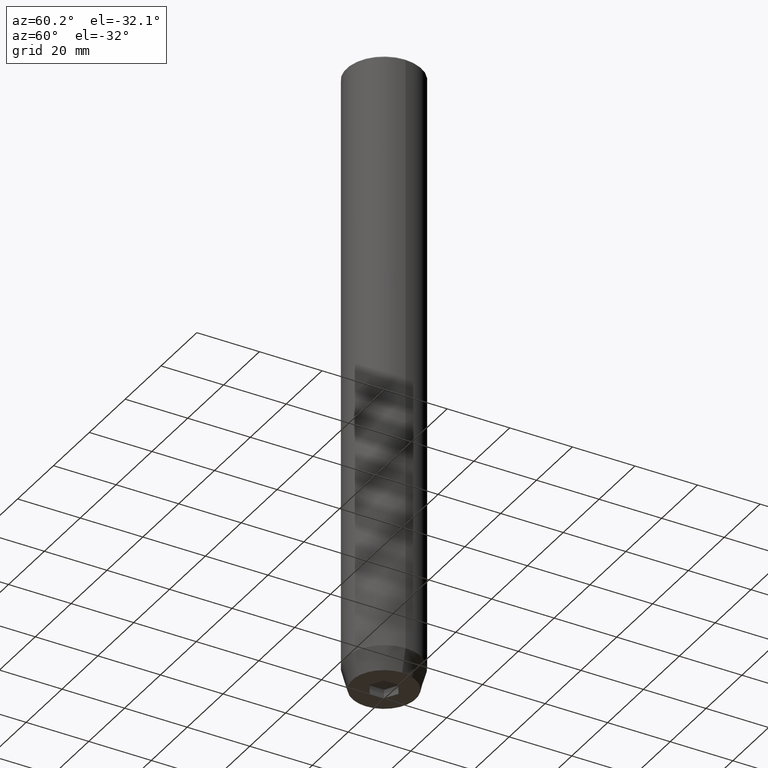
[diagram: clean part render]
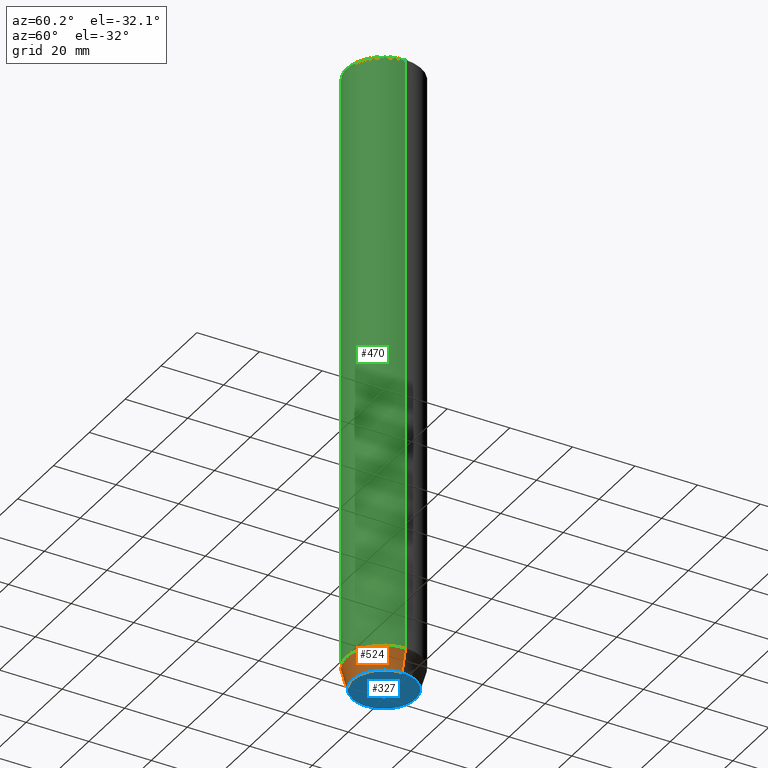
[diagram: same view with three faces highlighted in distinct colors, each labeled with its STEP entity id]
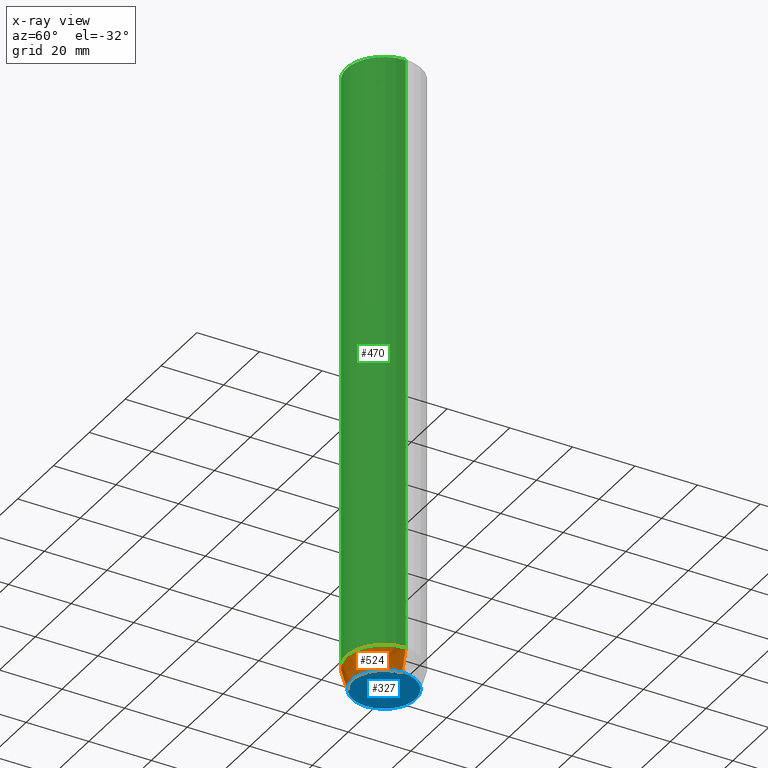
[diagram: x-ray of the same camera — body ghosted, the three highlighted faces saturated]
A machine part, auxiliary view with three faces highlighted in distinct colors.
The next image is the same camera in x-ray (body ghosted, the three faces saturated) — at least one of them is partly hidden behind the body in this view.
Their STEP definitions:

[orange] entity #524 — the highlighted conical surface has half-angle 15 deg.
#4 = VECTOR ( 'NONE', #447, 1000.000000000000000 ) ;
#39 = ORIENTED_EDGE ( 'NONE', *, *, #291, .F. ) ;
#47 = DIRECTION ( 'NONE',  ( 1.000000000000000000, 0.000000000000000000, 0.000000000000000000 ) ) ;
#52 = VERTEX_POINT ( 'NONE', #127 ) ;
#59 = AXIS2_PLACEMENT_3D ( 'NONE', #567, #383, #164 ) ;
#94 = AXIS2_PLACEMENT_3D ( 'NONE', #301, #420, #329 ) ;
#99 = ORIENTED_EDGE ( 'NONE', *, *, #334, .T. ) ;
#108 = FACE_OUTER_BOUND ( 'NONE', #264, .T. ) ;
#127 = CARTESIAN_POINT ( 'NONE',  ( 12.00000000000000000, 0.000000000000000000, -193.0000000000000000 ) ) ;
#135 = EDGE_CURVE ( 'NONE', #156, #416, #141, .T. ) ;
#139 = DIRECTION ( 'NONE',  ( -0.000000000000000000, -0.000000000000000000, 1.000000000000000000 ) ) ;
#141 = CIRCLE ( 'NONE', #59, 10.12435565298213547 ) ;
#147 = LINE ( 'NONE', #317, #4 ) ;
#149 = VERTEX_POINT ( 'NONE', #425 ) ;
#156 = VERTEX_POINT ( 'NONE', #265 ) ;
#164 = DIRECTION ( 'NONE',  ( 1.000000000000000000, 0.000000000000000000, 0.000000000000000000 ) ) ;
#172 = CONICAL_SURFACE ( 'NONE', #94, 12.00000000000000000, 0.2617993877991500740 ) ;
#179 = DIRECTION ( 'NONE',  ( 0.2588190451025213501, 0.000000000000000000, 0.9659258262890680902 ) ) ;
#204 = VECTOR ( 'NONE', #179, 1000.000000000000000 ) ;
#235 = CARTESIAN_POINT ( 'NONE',  ( 10.12435565298213547, 0.000000000000000000, -200.0000000000000000 ) ) ;
#236 = LINE ( 'NONE', #406, #204 ) ;
#264 = EDGE_LOOP ( 'NONE', ( #412, #349, #99, #39 ) ) ;
#265 = CARTESIAN_POINT ( 'NONE',  ( -10.12435565298213547, 1.354726066681111050E-15, -200.0000000000000000 ) ) ;
#291 = EDGE_CURVE ( 'NONE', #149, #52, #322, .T. ) ;
#301 = CARTESIAN_POINT ( 'NONE',  ( 0.000000000000000000, 0.000000000000000000, -193.0000000000000000 ) ) ;
#305 = AXIS2_PLACEMENT_3D ( 'NONE', #404, #139, #47 ) ;
#317 = CARTESIAN_POINT ( 'NONE',  ( -12.00000000000000000, 1.469576158976823947E-15, -193.0000000000000000 ) ) ;
#322 = CIRCLE ( 'NONE', #305, 12.00000000000000000 ) ;
#329 = DIRECTION ( 'NONE',  ( 1.000000000000000000, 0.000000000000000000, 0.000000000000000000 ) ) ;
#334 = EDGE_CURVE ( 'NONE', #416, #52, #236, .T. ) ;
#349 = ORIENTED_EDGE ( 'NONE', *, *, #135, .T. ) ;
#383 = DIRECTION ( 'NONE',  ( -0.000000000000000000, -0.000000000000000000, 1.000000000000000000 ) ) ;
#404 = CARTESIAN_POINT ( 'NONE',  ( 0.000000000000000000, 0.000000000000000000, -193.0000000000000000 ) ) ;
#406 = CARTESIAN_POINT ( 'NONE',  ( 12.00000000000000000, 0.000000000000000000, -193.0000000000000000 ) ) ;
#412 = ORIENTED_EDGE ( 'NONE', *, *, #458, .F. ) ;
#416 = VERTEX_POINT ( 'NONE', #235 ) ;
#420 = DIRECTION ( 'NONE',  ( -0.000000000000000000, -0.000000000000000000, 1.000000000000000000 ) ) ;
#425 = CARTESIAN_POINT ( 'NONE',  ( -12.00000000000000000, 1.469576158976823947E-15, -193.0000000000000000 ) ) ;
#447 = DIRECTION ( 'NONE',  ( -0.2588190451025213501, 3.169619151431772337E-17, 0.9659258262890680902 ) ) ;
#458 = EDGE_CURVE ( 'NONE', #156, #149, #147, .T. ) ;
#524 = ADVANCED_FACE ( 'NONE', ( #108 ), #172, .T. ) ;
#567 = CARTESIAN_POINT ( 'NONE',  ( 0.000000000000000000, 0.000000000000000000, -200.0000000000000000 ) ) ;

[blue] entity #327 — the highlighted planar face has unit normal (0, 0, -1).
#3 = CARTESIAN_POINT ( 'NONE',  ( 2.000000000000000444, 3.464101615137754386, -200.0000000000000000 ) ) ;
#12 = CARTESIAN_POINT ( 'NONE',  ( 0.000000000000000000, 0.000000000000000000, -200.0000000000000000 ) ) ;
#28 = EDGE_LOOP ( 'NONE', ( #511, #121 ) ) ;
#42 = FACE_OUTER_BOUND ( 'NONE', #28, .T. ) ;
#43 = VECTOR ( 'NONE', #361, 1000.000000000000000 ) ;
#53 = AXIS2_PLACEMENT_3D ( 'NONE', #12, #62, #255 ) ;
#57 = VERTEX_POINT ( 'NONE', #442 ) ;
#59 = AXIS2_PLACEMENT_3D ( 'NONE', #567, #383, #164 ) ;
#62 = DIRECTION ( 'NONE',  ( -0.000000000000000000, -0.000000000000000000, 1.000000000000000000 ) ) ;
#88 = CARTESIAN_POINT ( 'NONE',  ( -4.000000000000000000, 0.000000000000000000, -200.0000000000000000 ) ) ;
#89 = CARTESIAN_POINT ( 'NONE',  ( -2.000000000000000888, -3.464101615137754386, -200.0000000000000000 ) ) ;
#93 = CARTESIAN_POINT ( 'NONE',  ( 0.000000000000000000, 10.12435565298213547, -200.0000000000000000 ) ) ;
#101 = DIRECTION ( 'NONE',  ( 0.000000000000000000, -1.000000000000000000, 0.000000000000000000 ) ) ;
#121 = ORIENTED_EDGE ( 'NONE', *, *, #135, .F. ) ;
#135 = EDGE_CURVE ( 'NONE', #156, #416, #141, .T. ) ;
#138 = CARTESIAN_POINT ( 'NONE',  ( 4.336808689942017736E-16, -4.618802153517006737, -200.0000000000000000 ) ) ;
#140 = DIRECTION ( 'NONE',  ( -0.8660254037844384856, -0.5000000000000002220, 0.000000000000000000 ) ) ;
#141 = CIRCLE ( 'NONE', #59, 10.12435565298213547 ) ;
#144 = VERTEX_POINT ( 'NONE', #304 ) ;
#148 = FACE_BOUND ( 'NONE', #267, .T. ) ;
#156 = VERTEX_POINT ( 'NONE', #265 ) ;
#164 = DIRECTION ( 'NONE',  ( 1.000000000000000000, 0.000000000000000000, 0.000000000000000000 ) ) ;
#170 = VECTOR ( 'NONE', #551, 999.9999999999998863 ) ;
#178 = LINE ( 'NONE', #413, #170 ) ;
#180 = ORIENTED_EDGE ( 'NONE', *, *, #550, .F. ) ;
#195 = CARTESIAN_POINT ( 'NONE',  ( 4.000000000000000000, -2.309401076758502480, -200.0000000000000000 ) ) ;
#198 = VERTEX_POINT ( 'NONE', #435 ) ;
#233 = LINE ( 'NONE', #88, #483 ) ;
#234 = DIRECTION ( 'NONE',  ( 0.000000000000000000, 0.000000000000000000, -1.000000000000000000 ) ) ;
#235 = CARTESIAN_POINT ( 'NONE',  ( 10.12435565298213547, 0.000000000000000000, -200.0000000000000000 ) ) ;
#243 = CIRCLE ( 'NONE', #53, 10.12435565298213547 ) ;
#255 = DIRECTION ( 'NONE',  ( 1.000000000000000000, 0.000000000000000000, 0.000000000000000000 ) ) ;
#256 = EDGE_CURVE ( 'NONE', #490, #198, #324, .T. ) ;
#265 = CARTESIAN_POINT ( 'NONE',  ( -10.12435565298213547, 1.354726066681111050E-15, -200.0000000000000000 ) ) ;
#267 = EDGE_LOOP ( 'NONE', ( #434, #276, #387, #527, #180, #368 ) ) ;
#276 = ORIENTED_EDGE ( 'NONE', *, *, #488, .F. ) ;
#283 = DIRECTION ( 'NONE',  ( -1.000000000000000000, 0.000000000000000000, -0.000000000000000000 ) ) ;
#304 = CARTESIAN_POINT ( 'NONE',  ( 0.000000000000000000, 4.618802153517006737, -200.0000000000000000 ) ) ;
#324 = LINE ( 'NONE', #89, #548 ) ;
#326 = CARTESIAN_POINT ( 'NONE',  ( 4.000000000000000000, 0.000000000000000000, -200.0000000000000000 ) ) ;
#327 = ADVANCED_FACE ( 'NONE', ( #148, #42 ), #355, .T. ) ;
#332 = EDGE_CURVE ( 'NONE', #144, #386, #452, .T. ) ;
#352 = AXIS2_PLACEMENT_3D ( 'NONE', #93, #234, #283 ) ;
#355 = PLANE ( 'NONE',  #352 ) ;
#361 = DIRECTION ( 'NONE',  ( 0.8660254037844385966, -0.5000000000000001110, 0.000000000000000000 ) ) ;
#368 = ORIENTED_EDGE ( 'NONE', *, *, #332, .F. ) ;
#372 = EDGE_CURVE ( 'NONE', #500, #490, #498, .T. ) ;
#383 = DIRECTION ( 'NONE',  ( -0.000000000000000000, -0.000000000000000000, 1.000000000000000000 ) ) ;
#386 = VERTEX_POINT ( 'NONE', #494 ) ;
#387 = ORIENTED_EDGE ( 'NONE', *, *, #256, .F. ) ;
#413 = CARTESIAN_POINT ( 'NONE',  ( -2.000000000000000000, 3.464101615137754830, -200.0000000000000000 ) ) ;
#416 = VERTEX_POINT ( 'NONE', #235 ) ;
#418 = EDGE_CURVE ( 'NONE', #57, #144, #178, .T. ) ;
#434 = ORIENTED_EDGE ( 'NONE', *, *, #418, .F. ) ;
#435 = CARTESIAN_POINT ( 'NONE',  ( -4.000000000000000000, -2.309401076758503368, -200.0000000000000000 ) ) ;
#442 = CARTESIAN_POINT ( 'NONE',  ( -4.000000000000000000, 2.309401076758503368, -200.0000000000000000 ) ) ;
#452 = LINE ( 'NONE', #3, #43 ) ;
#453 = CARTESIAN_POINT ( 'NONE',  ( 2.000000000000000888, -3.464101615137754386, -200.0000000000000000 ) ) ;
#483 = VECTOR ( 'NONE', #542, 1000.000000000000000 ) ;
#484 = VECTOR ( 'NONE', #101, 1000.000000000000000 ) ;
#488 = EDGE_CURVE ( 'NONE', #198, #57, #233, .T. ) ;
#490 = VERTEX_POINT ( 'NONE', #138 ) ;
#494 = CARTESIAN_POINT ( 'NONE',  ( 4.000000000000000000, 2.309401076758503368, -200.0000000000000000 ) ) ;
#495 = DIRECTION ( 'NONE',  ( -0.8660254037844384856, 0.5000000000000002220, 0.000000000000000000 ) ) ;
#496 = VECTOR ( 'NONE', #140, 1000.000000000000114 ) ;
#498 = LINE ( 'NONE', #453, #496 ) ;
#500 = VERTEX_POINT ( 'NONE', #195 ) ;
#507 = EDGE_CURVE ( 'NONE', #416, #156, #243, .T. ) ;
#511 = ORIENTED_EDGE ( 'NONE', *, *, #507, .F. ) ;
#527 = ORIENTED_EDGE ( 'NONE', *, *, #372, .F. ) ;
#542 = DIRECTION ( 'NONE',  ( 0.000000000000000000, 1.000000000000000000, 0.000000000000000000 ) ) ;
#548 = VECTOR ( 'NONE', #495, 1000.000000000000114 ) ;
#550 = EDGE_CURVE ( 'NONE', #386, #500, #553, .T. ) ;
#551 = DIRECTION ( 'NONE',  ( 0.8660254037844387076, 0.5000000000000001110, 0.000000000000000000 ) ) ;
#553 = LINE ( 'NONE', #326, #484 ) ;
#567 = CARTESIAN_POINT ( 'NONE',  ( 0.000000000000000000, 0.000000000000000000, -200.0000000000000000 ) ) ;

[green] entity #470 — the highlighted cylindrical surface (partial cylindrical patch) has radius 12 mm, axis along (-0, -0, 1).
#25 = CARTESIAN_POINT ( 'NONE',  ( 0.000000000000000000, 0.000000000000000000, -0.5000000000000334177 ) ) ;
#37 = DIRECTION ( 'NONE',  ( -0.000000000000000000, -0.000000000000000000, 1.000000000000000000 ) ) ;
#47 = DIRECTION ( 'NONE',  ( 1.000000000000000000, 0.000000000000000000, 0.000000000000000000 ) ) ;
#52 = VERTEX_POINT ( 'NONE', #127 ) ;
#66 = DIRECTION ( 'NONE',  ( 0.000000000000000000, 0.000000000000000000, -1.000000000000000000 ) ) ;
#71 = CIRCLE ( 'NONE', #330, 12.00000000000000000 ) ;
#81 = EDGE_CURVE ( 'NONE', #571, #509, #71, .T. ) ;
#112 = DIRECTION ( 'NONE',  ( -0.000000000000000000, -0.000000000000000000, 1.000000000000000000 ) ) ;
#127 = CARTESIAN_POINT ( 'NONE',  ( 12.00000000000000000, 0.000000000000000000, -193.0000000000000000 ) ) ;
#139 = DIRECTION ( 'NONE',  ( -0.000000000000000000, -0.000000000000000000, 1.000000000000000000 ) ) ;
#149 = VERTEX_POINT ( 'NONE', #425 ) ;
#159 = CARTESIAN_POINT ( 'NONE',  ( 12.00000000000000000, 0.000000000000000000, 0.000000000000000000 ) ) ;
#192 = LINE ( 'NONE', #444, #288 ) ;
#228 = EDGE_CURVE ( 'NONE', #52, #571, #377, .T. ) ;
#229 = CYLINDRICAL_SURFACE ( 'NONE', #312, 12.00000000000000000 ) ;
#269 = VECTOR ( 'NONE', #112, 1000.000000000000000 ) ;
#287 = CARTESIAN_POINT ( 'NONE',  ( 12.00000000000000000, 0.000000000000000000, -0.5000000000000334177 ) ) ;
#288 = VECTOR ( 'NONE', #37, 1000.000000000000000 ) ;
#291 = EDGE_CURVE ( 'NONE', #149, #52, #322, .T. ) ;
#305 = AXIS2_PLACEMENT_3D ( 'NONE', #404, #139, #47 ) ;
#312 = AXIS2_PLACEMENT_3D ( 'NONE', #407, #580, #546 ) ;
#322 = CIRCLE ( 'NONE', #305, 12.00000000000000000 ) ;
#328 = ORIENTED_EDGE ( 'NONE', *, *, #356, .F. ) ;
#330 = AXIS2_PLACEMENT_3D ( 'NONE', #25, #66, #379 ) ;
#356 = EDGE_CURVE ( 'NONE', #149, #509, #192, .T. ) ;
#377 = LINE ( 'NONE', #159, #269 ) ;
#379 = DIRECTION ( 'NONE',  ( 1.000000000000000000, 0.000000000000000000, 0.000000000000000000 ) ) ;
#404 = CARTESIAN_POINT ( 'NONE',  ( 0.000000000000000000, 0.000000000000000000, -193.0000000000000000 ) ) ;
#407 = CARTESIAN_POINT ( 'NONE',  ( 0.000000000000000000, 0.000000000000000000, 0.000000000000000000 ) ) ;
#425 = CARTESIAN_POINT ( 'NONE',  ( -12.00000000000000000, 1.469576158976823947E-15, -193.0000000000000000 ) ) ;
#431 = EDGE_LOOP ( 'NONE', ( #328, #560, #582, #555 ) ) ;
#444 = CARTESIAN_POINT ( 'NONE',  ( -12.00000000000000000, 1.469576158976823947E-15, 0.000000000000000000 ) ) ;
#470 = ADVANCED_FACE ( 'NONE', ( #583 ), #229, .T. ) ;
#509 = VERTEX_POINT ( 'NONE', #516 ) ;
#516 = CARTESIAN_POINT ( 'NONE',  ( -12.00000000000000000, 1.469576158976823947E-15, -0.5000000000000334177 ) ) ;
#546 = DIRECTION ( 'NONE',  ( 1.000000000000000000, 0.000000000000000000, 0.000000000000000000 ) ) ;
#555 = ORIENTED_EDGE ( 'NONE', *, *, #81, .T. ) ;
#560 = ORIENTED_EDGE ( 'NONE', *, *, #291, .T. ) ;
#571 = VERTEX_POINT ( 'NONE', #287 ) ;
#580 = DIRECTION ( 'NONE',  ( -0.000000000000000000, -0.000000000000000000, 1.000000000000000000 ) ) ;
#582 = ORIENTED_EDGE ( 'NONE', *, *, #228, .T. ) ;
#583 = FACE_OUTER_BOUND ( 'NONE', #431, .T. ) ;